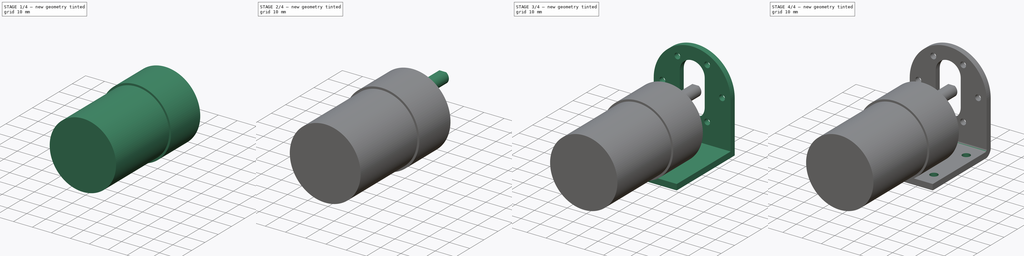
[diagram: build sequence overview — one tinted view per stage of 4, left to right]
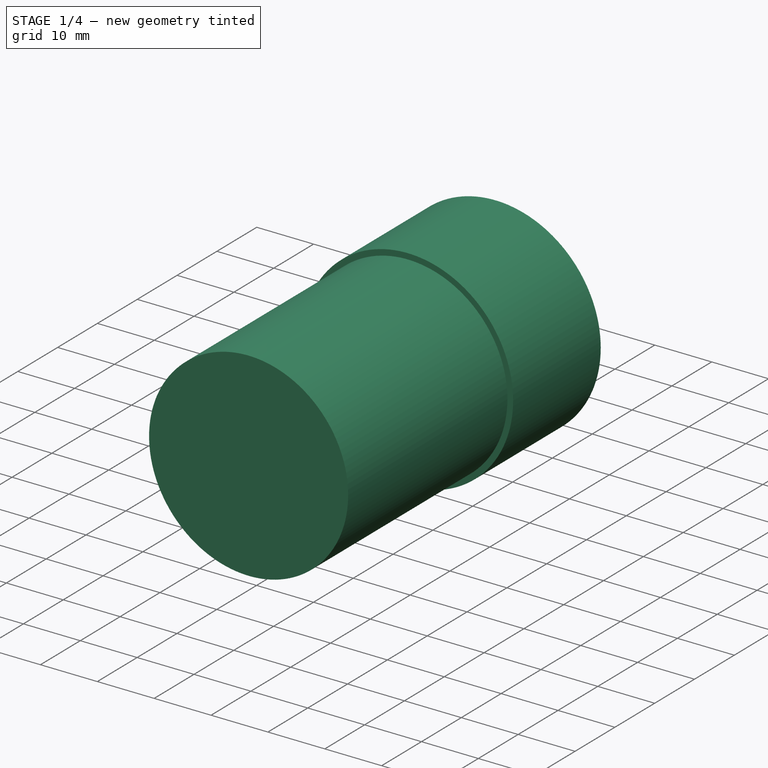
[diagram: stage 1 of 4 — iso view after this stage's code; geometry added in this stage tinted green]
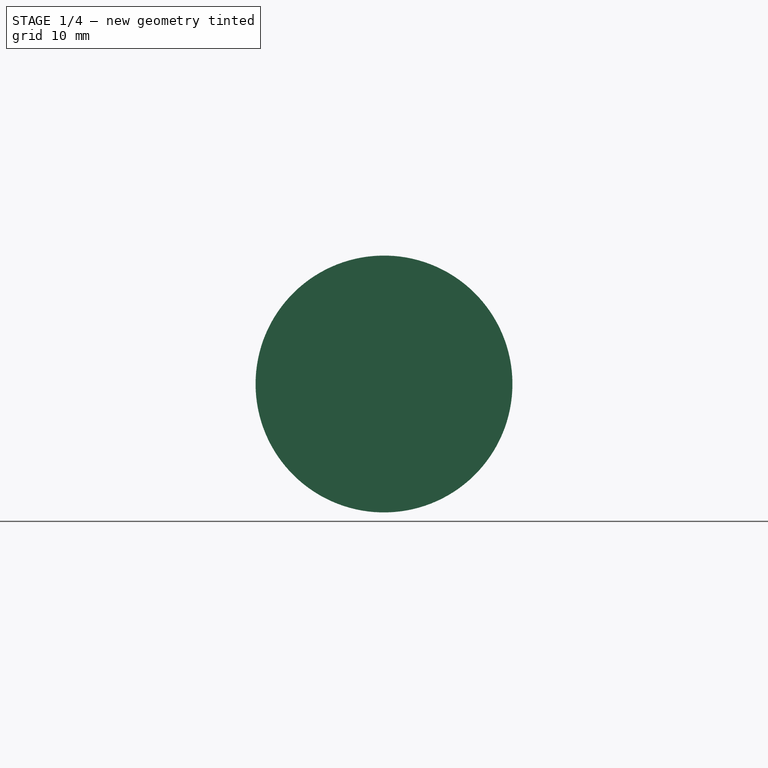
[diagram: stage 1 of 4 — front view after this stage's code; geometry added in this stage tinted green]
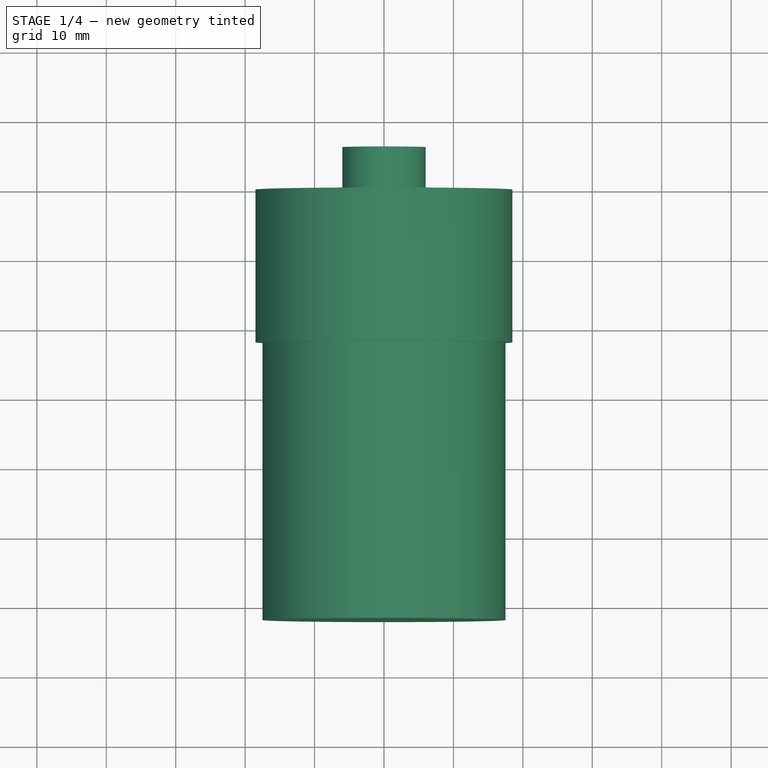
[diagram: stage 1 of 4 — top view after this stage's code; geometry added in this stage tinted green]
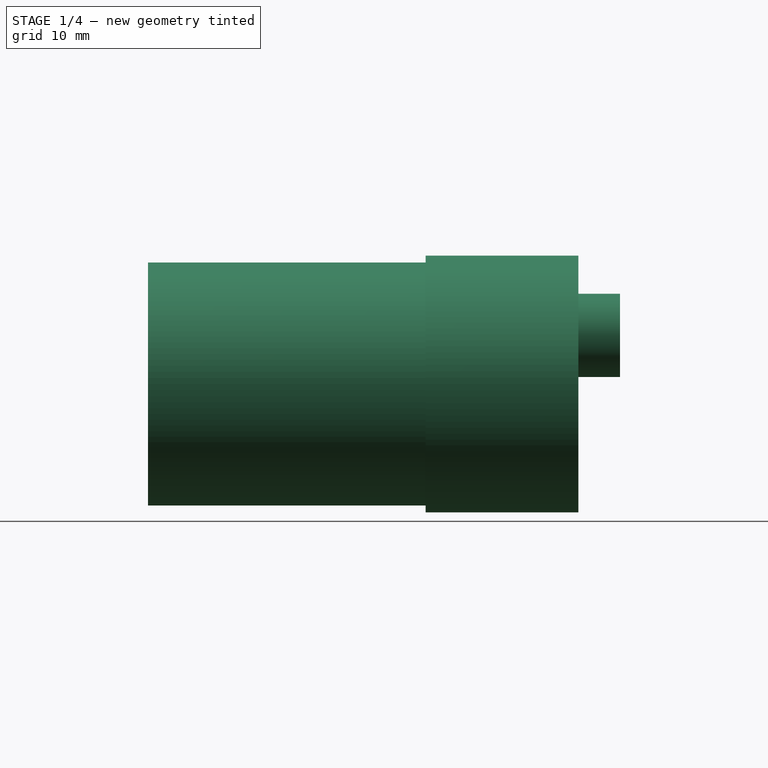
[diagram: stage 1 of 4 — right view after this stage's code; geometry added in this stage tinted green]
FCSTD DOCUMENT  (FreeCAD 0.20R29603 (Git))
Label: 모터, 브라켓
License: All rights reserved
LicenseURL: http://en.wikipedia.org/wiki/All_rights_reserved
objects: Sketcher::SketchObject×10, PartDesign::Pad×6, PartDesign::Pocket×4, PartDesign::Fillet×2, PartDesign::Body×2
note: 36 computed .brp shape members not serialized (recipe doc carries the construction recipe); baked Part::Feature solids carry a one-line shape summary decoded from their .brp

FEATURE [PartDesign::Body] Body
  Group = -> [Sketch,Pad,Sketch001,Pad001,Sketch002,Pocket,Fillet,Sketch003,Pocket001]
  Origin = -> Origin
  Placement = pos=(0,-18.5,-8.5) rot=(0,0,1;0rad)
  Tip = -> Pocket001
FEATURE [Sketcher::SketchObject] Sketch004
  FullyConstrained = true
  MapMode = 5
  Placement = pos=(0,0,0) rot=(1,0,0;1.5708rad)
  Support = -> [XZ_Plane001]
  sketch-geometry (1):
    g0: Circle CenterX=0 CenterY=18.5 CenterZ=0 NormalX=0 NormalY=0 NormalZ=1 AngleXU=0 Radius=18.5
  constraints (3):
    c: PointOnObject(g0,g-2)
    c: Diameter(g0) = 37
    c: PointOnObject(g-1,g0)
FEATURE [PartDesign::Pad] Pad002
  Direction = (0,-1,2e-16)
  Length = 22
  Length2 = 10
  Placement = pos=(0,0,0) rot=(1,0,0;1.5708rad)
  Profile = -> Sketch004
  ReferenceAxis = -> Sketch004 [N_Axis]
  Type = 0
FEATURE [Sketcher::SketchObject] Sketch005
  ExternalGeometry = -> [Pad002]
  FullyConstrained = true
  MapMode = 5
  Placement = pos=(0,-22,4.9e-15) rot=(1,0,0;1.5708rad)
  Support = -> [Pad002]
  sketch-geometry (1):
    g0: Circle CenterX=0 CenterY=18.5 CenterZ=0 NormalX=0 NormalY=0 NormalZ=1 AngleXU=0 Radius=17.5
  constraints (2):
    c: Coincident(g0,g-3)
    c: Diameter(g0) = 35
FEATURE [PartDesign::Pad] Pad003
  BaseFeature = -> Pad002
  Direction = (0,-1,2e-16)
  Length = 40
  Length2 = 10
  Placement = pos=(0,0,0) rot=(1,0,0;1.5708rad)
  Profile = -> Sketch005
  ReferenceAxis = -> Sketch005 [N_Axis]
  Type = 0
FEATURE [Sketcher::SketchObject] Sketch006
  ExternalGeometry = -> [Pad003]
  FullyConstrained = true
  MapMode = 5
  Placement = pos=(0,0,0) rot=(-1,0,0;1.5708rad)
  Support = -> [Pad003]
  sketch-geometry (1):
    g0: Circle CenterX=0 CenterY=-25.5 CenterZ=0 NormalX=0 NormalY=0 NormalZ=1 AngleXU=0 Radius=6
  constraints (3):
    c: PointOnObject(g0,g-2)
    c: Diameter(g0) = 12
    c: DistanceY(g0,g-3) = 7
FEATURE [PartDesign::Pad] Pad004
  BaseFeature = -> Pad003
  Direction = (0,1,-2e-16)
  Length = 6
  Length2 = 10
  Placement = pos=(0,0,0) rot=(1,0,0;1.5708rad)
  Profile = -> Sketch006
  ReferenceAxis = -> Sketch006 [N_Axis]
  Type = 0
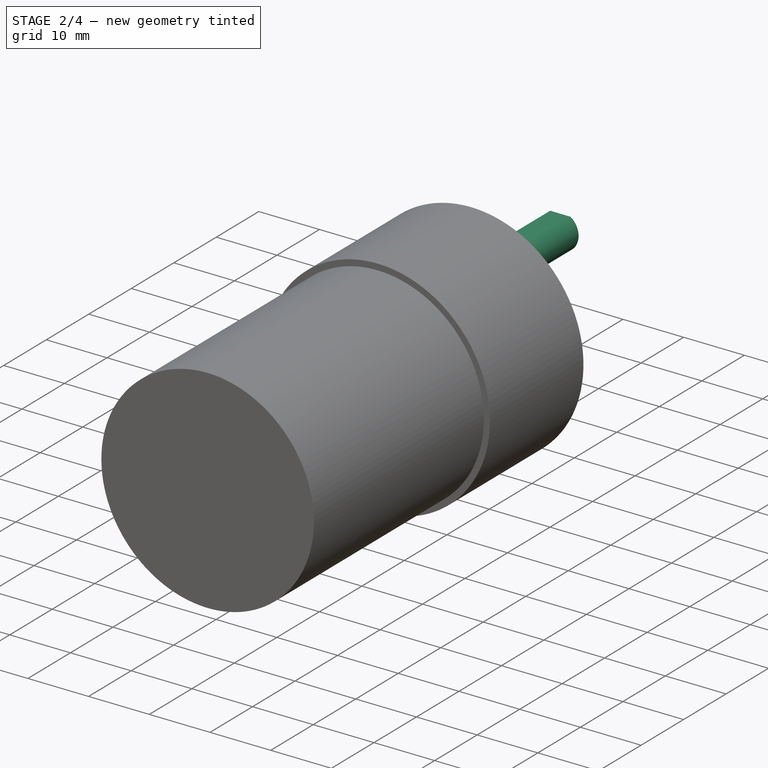
[diagram: stage 2 of 4 — iso view after this stage's code; geometry added in this stage tinted green]
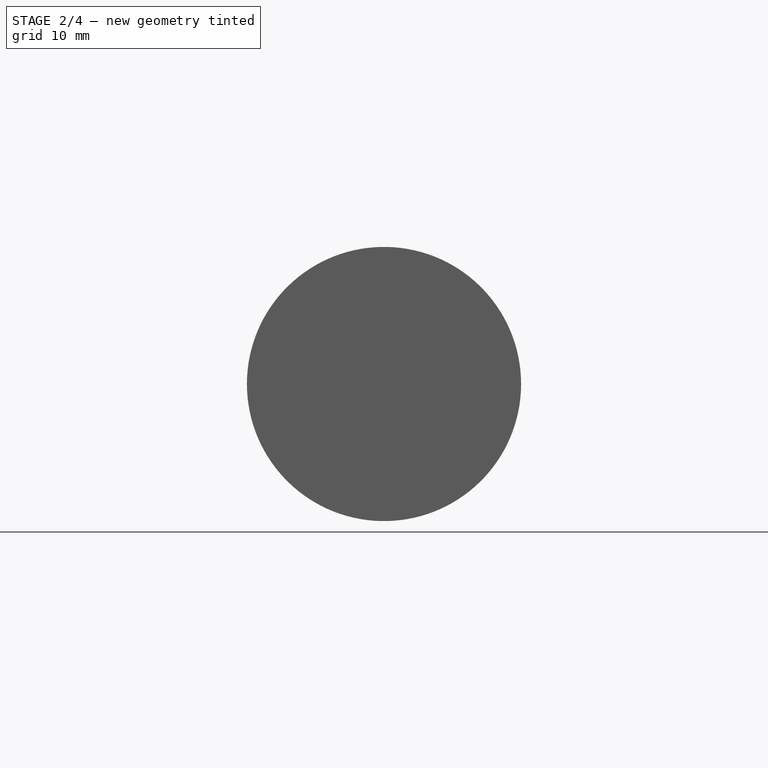
[diagram: stage 2 of 4 — front view after this stage's code; geometry added in this stage tinted green]
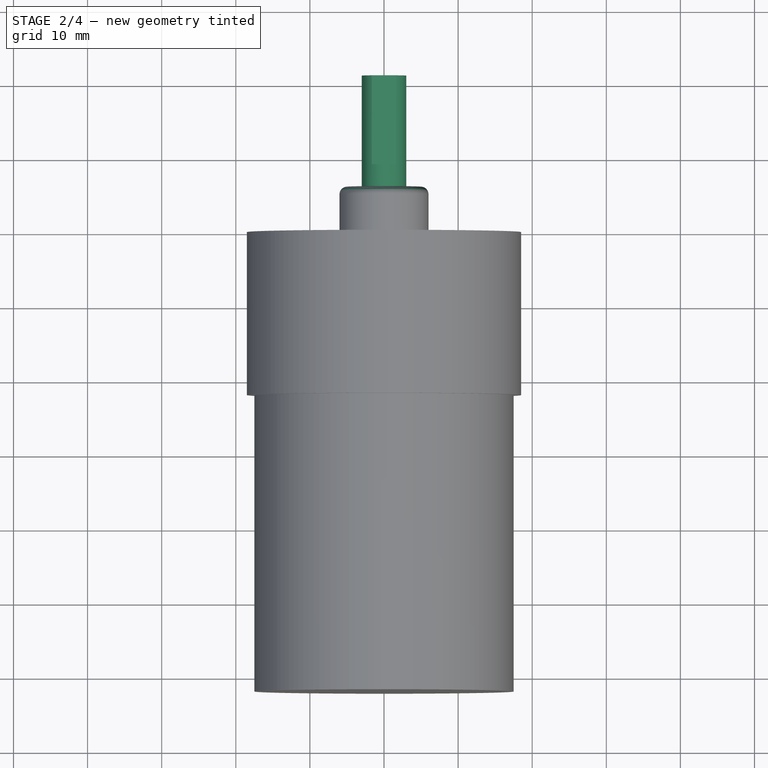
[diagram: stage 2 of 4 — top view after this stage's code; geometry added in this stage tinted green]
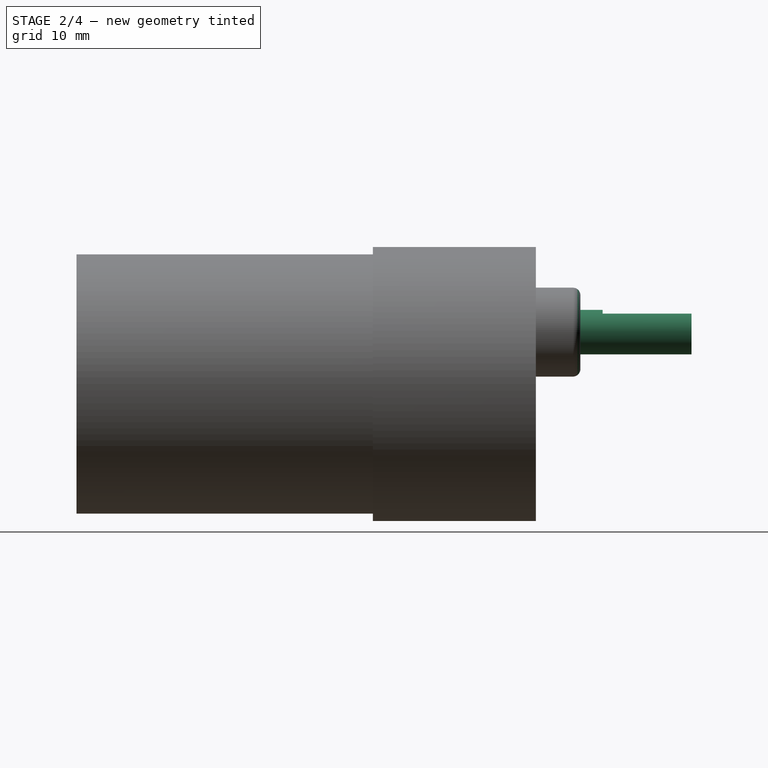
[diagram: stage 2 of 4 — right view after this stage's code; geometry added in this stage tinted green]
FEATURE [PartDesign::Fillet] Fillet001
  Base = -> Pad004 [Edge7]
  BaseFeature = -> Pad004
  Placement = pos=(0,0,0) rot=(1,0,0;1.5708rad)
  Radius = 1
  SupportTransform = false
  UseAllEdges = false
FEATURE [Sketcher::SketchObject] Sketch007
  ExternalGeometry = -> [Fillet001]
  FullyConstrained = true
  MapMode = 5
  Placement = pos=(0,6,-1.3e-15) rot=(-1,0,0;1.5708rad)
  Support = -> [Fillet001]
  sketch-geometry (1):
    g0: Circle CenterX=0 CenterY=-25.5 CenterZ=0 NormalX=0 NormalY=0 NormalZ=1 AngleXU=0 Radius=3
  constraints (2):
    c: Coincident(g0,g-3)
    c: Diameter(g0) = 6
FEATURE [PartDesign::Pad] Pad005
  BaseFeature = -> Fillet001
  Direction = (0,1,-2e-16)
  Length = 15
  Length2 = 10
  Placement = pos=(0,0,0) rot=(1,0,0;1.5708rad)
  Profile = -> Sketch007
  ReferenceAxis = -> Sketch007 [N_Axis]
  Type = 0
FEATURE [Sketcher::SketchObject] Sketch008
  ExternalGeometry = -> [Pad005]
  FullyConstrained = true
  MapMode = 5
  Placement = pos=(2.1e-15,21,-3.6e-15) rot=(-1,0,0;1.5708rad)
  Support = -> [Pad005]
  sketch-geometry (2):
    g0: LineSegment StartX=-1.65831 StartY=-28 StartZ=0 EndX=1.65831 EndY=-28 EndZ=0
    g1: ArcOfCircle CenterX=-1.2e-15 CenterY=-25.5 CenterZ=0 NormalX=0 NormalY=0 NormalZ=1 AngleXU=0 Radius=3 StartAngle=4.1267 EndAngle=5.29807
  constraints (8):
    c: PointOnObject(g0,g-3)
    c: PointOnObject(g0,g-3)
    c: Horizontal(g0)
    c: Diameter(g-3) = 6
    c: DistanceY(g0,g-3) = 2.5
    c: Coincident(g1,g0)
    c: Coincident(g1,g0)
    c: Tangent(g1,g-3)
FEATURE [PartDesign::Pocket] Pocket002
  BaseFeature = -> Pad005
  Direction = (-1e-16,-1,2e-16)
  Length = 12
  Length2 = 5
  Placement = pos=(0,0,0) rot=(1,0,0;1.5708rad)
  Profile = -> Sketch008
  ReferenceAxis = -> Sketch008 [N_Axis]
  Type = 0
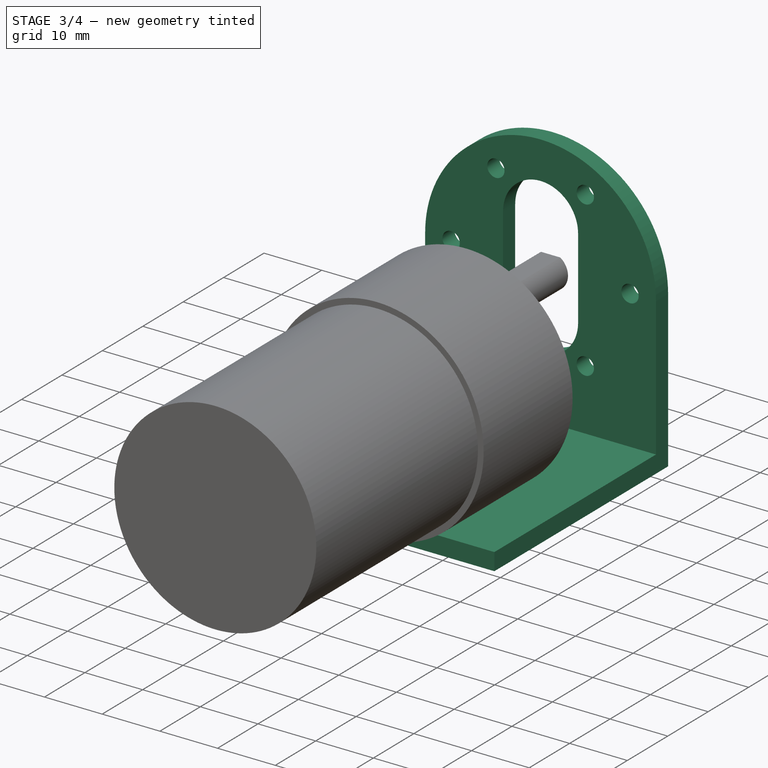
[diagram: stage 3 of 4 — iso view after this stage's code; geometry added in this stage tinted green]
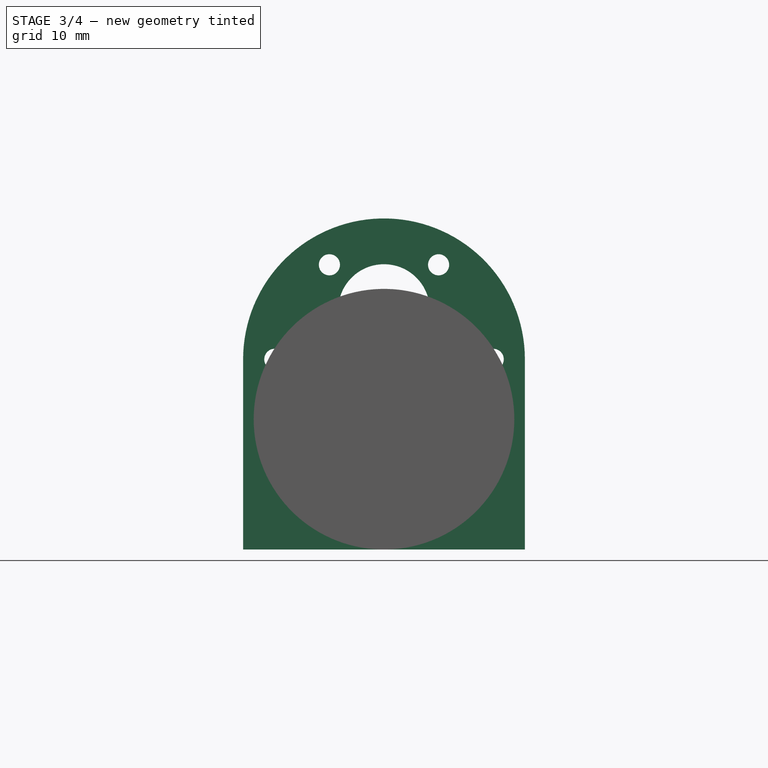
[diagram: stage 3 of 4 — front view after this stage's code; geometry added in this stage tinted green]
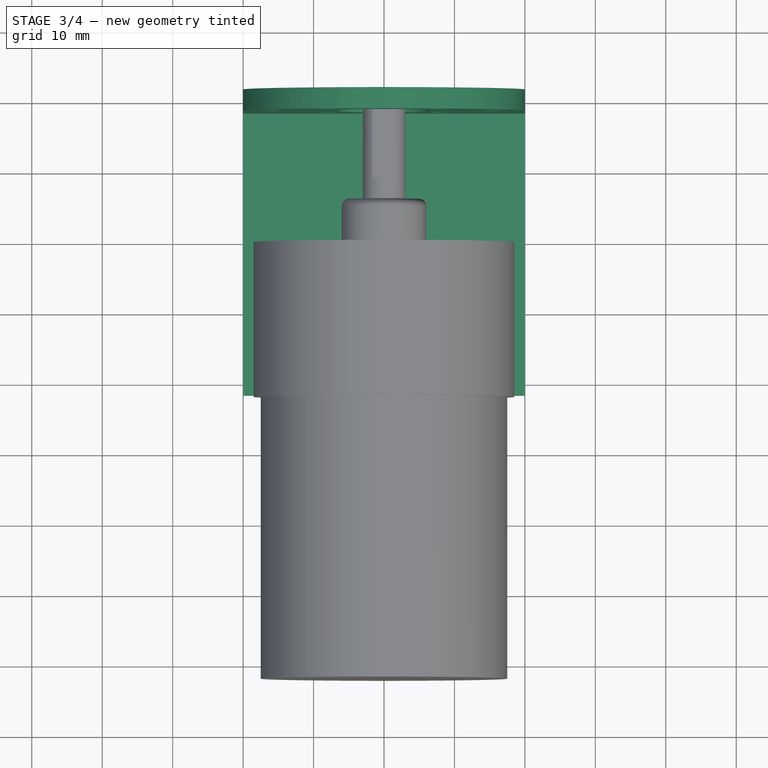
[diagram: stage 3 of 4 — top view after this stage's code; geometry added in this stage tinted green]
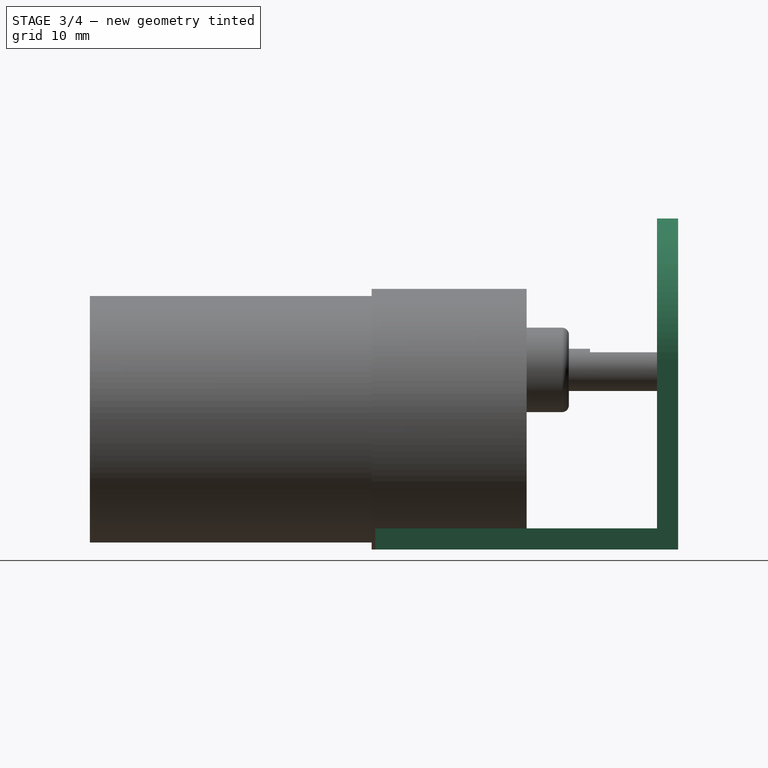
[diagram: stage 3 of 4 — right view after this stage's code; geometry added in this stage tinted green]
FEATURE [Sketcher::SketchObject] Sketch
  FullyConstrained = true
  MapMode = 5
  Support = -> [XY_Plane]
  sketch-geometry (4):
    g0: LineSegment StartX=-20 StartY=21.5 StartZ=0 EndX=20 EndY=21.5 EndZ=0
    g1: LineSegment StartX=20 StartY=21.5 StartZ=0 EndX=20 EndY=-21.5 EndZ=0
    g2: LineSegment StartX=20 StartY=-21.5 StartZ=0 EndX=-20 EndY=-21.5 EndZ=0
    g3: LineSegment StartX=-20 StartY=-21.5 StartZ=0 EndX=-20 EndY=21.5 EndZ=0
  constraints (12):
    c: Coincident(g0,g1)
    c: Coincident(g1,g2)
    c: Coincident(g2,g3)
    c: Coincident(g3,g0)
    c: Horizontal(g0)
    c: Horizontal(g2)
    c: Vertical(g1)
    c: Vertical(g3)
    c: DistanceX(g0,g0) = 40
    c: DistanceY(g1,g1) = 43
    c: DistanceY(g-1,g0) = 21.5
    c: DistanceX(g-1,g0) = 20
FEATURE [PartDesign::Pad] Pad
  Direction = (0,0,1)
  Length = 3
  Length2 = 10
  Profile = -> Sketch
  ReferenceAxis = -> Sketch [N_Axis]
  Type = 0
FEATURE [Sketcher::SketchObject] Sketch001
  ExternalGeometry = -> [Pad]
  FullyConstrained = true
  MapMode = 5
  Placement = pos=(0,21.5,0) rot=(0,0.707107,0.707107;3.14159rad)
  Support = -> [Pad]
  sketch-geometry (14):
    g0: LineSegment StartX=-20 StartY=3 StartZ=0 EndX=20 EndY=3 EndZ=0
    g1: LineSegment StartX=20 StartY=3 StartZ=0 EndX=20 EndY=27 EndZ=0
    g2: LineSegment StartX=-20 StartY=27 StartZ=0 EndX=-20 EndY=3 EndZ=0
    g3: ArcOfCircle CenterX=1.2e-15 CenterY=27 CenterZ=0 NormalX=0 NormalY=0 NormalZ=1 AngleXU=0 Radius=20 StartAngle=0 EndAngle=3.14159
    g4: Circle CenterX=-7.75 CenterY=40.42 CenterZ=0 NormalX=0 NormalY=0 NormalZ=1 AngleXU=0 Radius=1.5
    g5: Circle CenterX=7.75 CenterY=40.42 CenterZ=0 NormalX=0 NormalY=0 NormalZ=1 AngleXU=0 Radius=1.5
    g6: Circle CenterX=15.5 CenterY=27 CenterZ=0 NormalX=0 NormalY=0 NormalZ=1 AngleXU=0 Radius=1.5
    g7: Circle CenterX=-15.5 CenterY=27 CenterZ=0 NormalX=0 NormalY=0 NormalZ=1 AngleXU=0 Radius=1.5
    g8: Circle CenterX=-7.75 CenterY=13.58 CenterZ=0 NormalX=0 NormalY=0 NormalZ=1 AngleXU=0 Radius=1.5
    g9: Circle CenterX=7.75 CenterY=13.58 CenterZ=0 NormalX=0 NormalY=0 NormalZ=1 AngleXU=0 Radius=1.5
    g10: ArcOfCircle CenterX=0 CenterY=34 CenterZ=0 NormalX=0 NormalY=0 NormalZ=1 AngleXU=0 Radius=6.5 StartAngle=0 EndAngle=3.14159
    g11: ArcOfCircle CenterX=0 CenterY=20 CenterZ=0 NormalX=0 NormalY=0 NormalZ=1 AngleXU=0 Radius=6.5 StartAngle=3.14159 EndAngle=6.28319
    g12: LineSegment StartX=-6.5 StartY=34 StartZ=0 EndX=-6.5 EndY=20 EndZ=0
    g13: LineSegment StartX=6.5 StartY=20 StartZ=0 EndX=6.5 EndY=34 EndZ=0
  constraints (38):
    c: Coincident(g0,g1)
    c: Coincident(g2,g0)
    c: Horizontal(g0)
    c: Vertical(g1)
    c: Vertical(g2)
    c: Coincident(g0,g-4)
    c: PointOnObject(g0,g-3)
    c: Tangent(g3,g1) = -1.5708
    c: Tangent(g3,g2) = -1.5708
    c: DistanceY(g-1,g1) = 27
    c: Horizontal(g5,g4)
    c: Horizontal(g7,g6)
    c: Horizontal(g9,g8)
    c: Diameter(g5) = 3
    c: DistanceX(g4,g5) = 15.5
    c: Horizontal(g6,g1)
    c: Vertical(g5,g9)
    c: Tangent(g10,g12) = -1.5708
    c: Tangent(g12,g11) = -1.5708
    c: Tangent(g11,g13) = -1.5708
    c: Tangent(g13,g10) = -1.5708
    c: Equal(g10,g11)
    c: PointOnObject(g10,g-2)
    c: PointOnObject(g11,g-2)
    c: DistanceX(g10,g10) = 13
    c: DistanceY(g-1,g11) = 20
    c: DistanceY(g-1,g10) = 34
    c: DistanceX(g9,g0) = 12.25
    c: DistanceY(g-1,g9) = 13.58
    c: DistanceX(g0,g8) = 12.25
    c: DistanceY(g-1,g5) = 40.42
    c: DistanceX(g6,g1) = 4.5
    c: DistanceX(g2,g7) = 4.5
    c: Diameter(g4) = 3
    c: Diameter(g7) = 3
    c: Diameter(g8) = 3
    c: Diameter(g9) = 3
    c: Diameter(g6) = 3
FEATURE [PartDesign::Pad] Pad001
  BaseFeature = -> Pad
  Direction = (0,1,-2e-16)
  Length = 3
  Length2 = 10
  Profile = -> Sketch001
  ReferenceAxis = -> Sketch001 [N_Axis]
  Reversed = true
  Type = 0
FEATURE [Sketcher::SketchObject] Sketch009
  ExternalGeometry = -> [Pocket002]
  FullyConstrained = true
  MapMode = 5
  Placement = pos=(0,0,0) rot=(-1,0,0;1.5708rad)
  Support = -> [Pocket002]
  sketch-geometry (6):
    g0: Circle CenterX=-7.75 CenterY=-5.08 CenterZ=0 NormalX=0 NormalY=0 NormalZ=1 AngleXU=0 Radius=1.5
    g1: Circle CenterX=7.75 CenterY=-5.08 CenterZ=0 NormalX=0 NormalY=0 NormalZ=1 AngleXU=0 Radius=1.5
    g2: Circle CenterX=-15.5 CenterY=-18.5 CenterZ=0 NormalX=0 NormalY=0 NormalZ=1 AngleXU=0 Radius=1.5
    g3: Circle CenterX=15.5 CenterY=-18.5 CenterZ=0 NormalX=0 NormalY=0 NormalZ=1 AngleXU=0 Radius=1.5
    g4: Circle CenterX=7.75 CenterY=-31.92 CenterZ=0 NormalX=0 NormalY=0 NormalZ=1 AngleXU=0 Radius=1.5
    g5: Circle CenterX=-7.75 CenterY=-31.92 CenterZ=0 NormalX=0 NormalY=0 NormalZ=1 AngleXU=0 Radius=1.5
  constraints (18):
    c: Horizontal(g0,g1)
    c: Horizontal(g2,g3)
    c: Horizontal(g4,g5)
    c: Vertical(g0,g5)
    c: Diameter(g0) = 3
    c: Diameter(g1) = 3
    c: Diameter(g3) = 3
    c: Diameter(g4) = 3
    c: Diameter(g5) = 3
    c: Diameter(g2) = 3
    c: DistanceX(g0,g1) = 15.5
    c: DistanceY(g1,g-1) = 5.08
    c: DistanceX(g-1,g1) = 7.75
    c: DistanceX(g-3,g3) = 15.5
    c: Horizontal(g3,g-3)
    c: DistanceX(g2,g-3) = 15.5
    c: DistanceY(g4,g1) = 26.84
    c: DistanceX(g-3,g4) = 7.75
FEATURE [PartDesign::Pocket] Pocket003
  BaseFeature = -> Pocket002
  Direction = (0,-1,2e-16)
  Length = 15
  Length2 = 5
  Placement = pos=(0,0,0) rot=(1,0,0;1.5708rad)
  Profile = -> Sketch009
  ReferenceAxis = -> Sketch009 [N_Axis]
  Type = 0
FEATURE [PartDesign::Body] Body001
  Group = -> [Sketch004,Pad002,Sketch005,Pad003,Sketch006,Pad004,Fillet001,Sketch007,Pad005,Sketch008,Pocket002,Sketch009,Pocket003]
  Origin = -> Origin001
  Tip = -> Pocket003
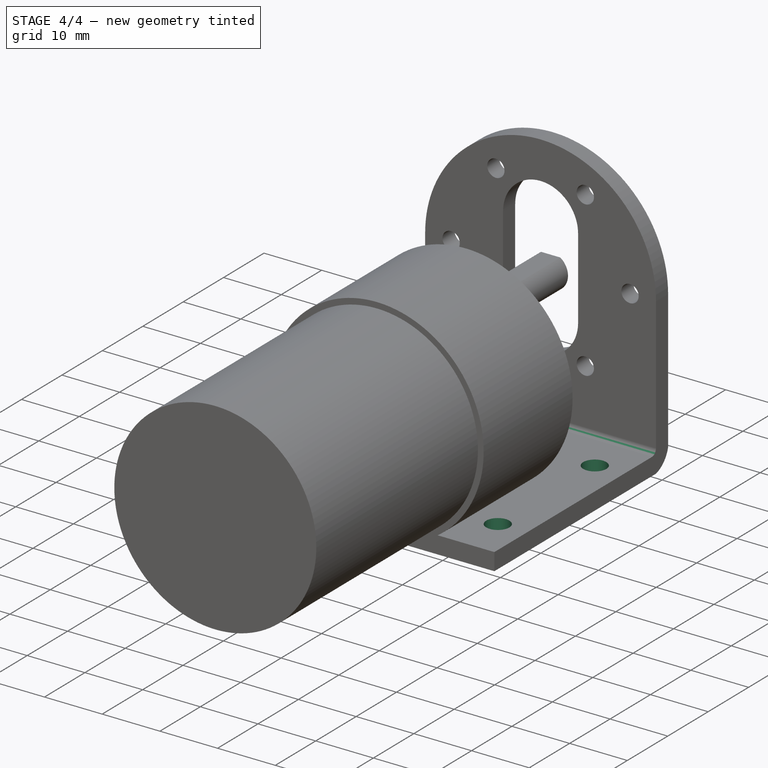
[diagram: stage 4 of 4 — iso view after this stage's code; geometry added in this stage tinted green]
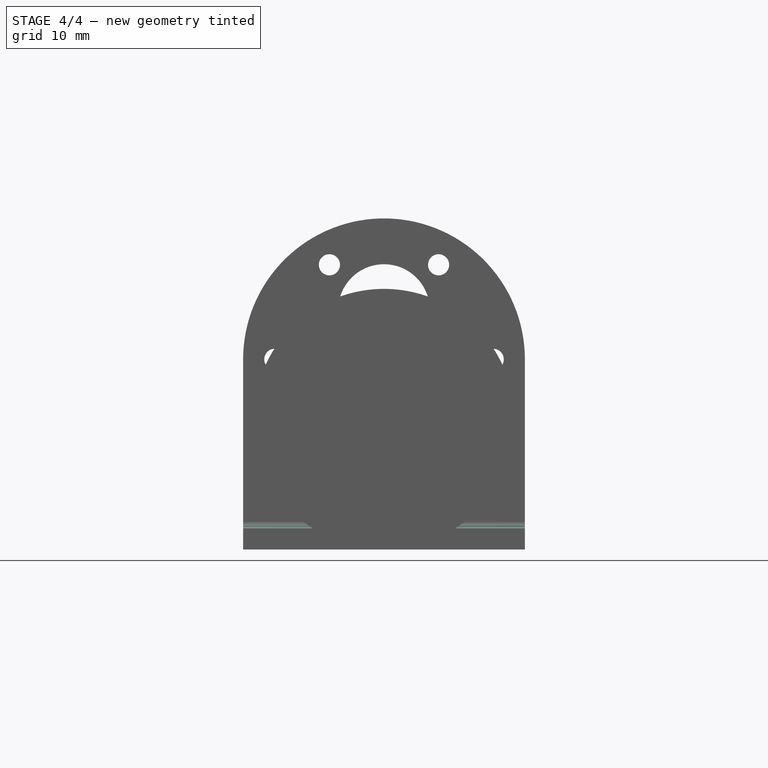
[diagram: stage 4 of 4 — front view after this stage's code; geometry added in this stage tinted green]
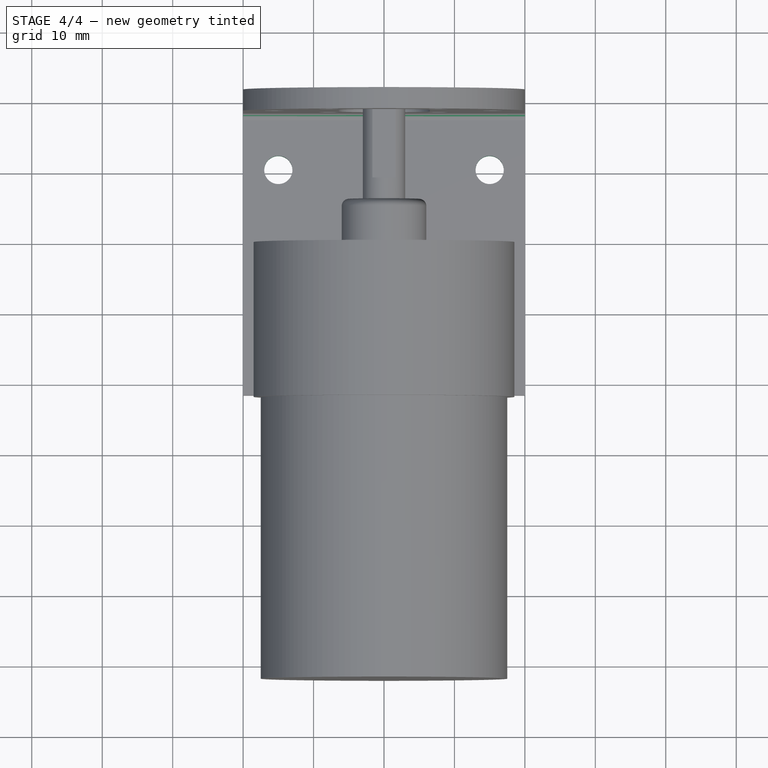
[diagram: stage 4 of 4 — top view after this stage's code; geometry added in this stage tinted green]
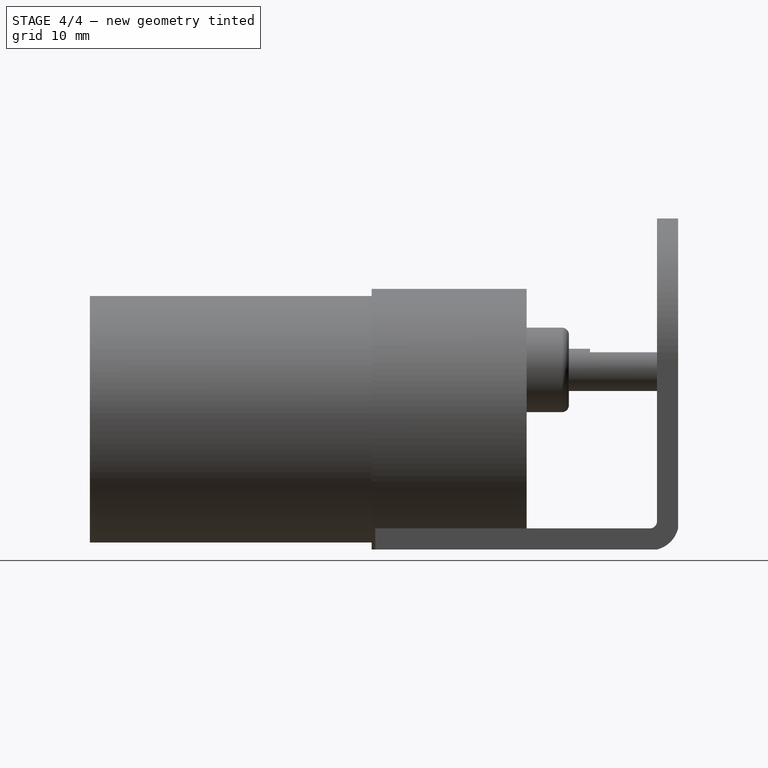
[diagram: stage 4 of 4 — right view after this stage's code; geometry added in this stage tinted green]
FEATURE [Sketcher::SketchObject] Sketch002
  ExternalGeometry = -> [Pad001]
  FullyConstrained = true
  MapMode = 5
  Placement = pos=(0,0,3) rot=(0,0,1;0rad)
  Support = -> [Pad001]
  sketch-geometry (4):
    g0: Circle CenterX=15 CenterY=10.5 CenterZ=0 NormalX=0 NormalY=0 NormalZ=1 AngleXU=0 Radius=2
    g1: Circle CenterX=15 CenterY=-13.5 CenterZ=0 NormalX=0 NormalY=0 NormalZ=1 AngleXU=0 Radius=2
    g2: Circle CenterX=-15 CenterY=10.5 CenterZ=0 NormalX=0 NormalY=0 NormalZ=1 AngleXU=0 Radius=2
    g3: Circle CenterX=-15 CenterY=-13.5 CenterZ=0 NormalX=0 NormalY=0 NormalZ=1 AngleXU=0 Radius=2
  constraints (12):
    c: DistanceY(g3,g2) = 24
    c: DistanceX(g3,g1) = 30
    c: Horizontal(g0,g2)
    c: Horizontal(g1,g3)
    c: Vertical(g1,g0)
    c: Vertical(g2,g3)
    c: Diameter(g1) = 4
    c: Diameter(g0) = 4
    c: Diameter(g2) = 4
    c: Diameter(g3) = 4
    c: DistanceX(g-5,g3) = 5
    c: DistanceY(g-5,g3) = 8
FEATURE [PartDesign::Pocket] Pocket
  BaseFeature = -> Pad001
  Direction = (0,0,-1)
  Length = 5
  Length2 = 5
  Profile = -> Sketch002
  ReferenceAxis = -> Sketch002 [N_Axis]
  Type = 1
FEATURE [PartDesign::Fillet] Fillet
  Base = -> Pocket [Edge32]
  BaseFeature = -> Pocket
  Radius = 1
  SupportTransform = false
  UseAllEdges = false
FEATURE [Sketcher::SketchObject] Sketch003
  ExternalGeometry = -> [Fillet]
  FullyConstrained = true
  MapMode = 5
  Placement = pos=(-20,0,0) rot=(0.57735,-0.57735,-0.57735;2.0944rad)
  Support = -> [Fillet]
  sketch-geometry (3):
    g0: ArcOfCircle CenterX=-17.5 CenterY=4 CenterZ=0 NormalX=0 NormalY=0 NormalZ=1 AngleXU=0 Radius=4.12311 StartAngle=3.38657 EndAngle=4.46741
    g1: LineSegment StartX=-21.5 StartY=3 StartZ=0 EndX=-21.5 EndY=0 EndZ=0
    g2: LineSegment StartX=-21.5 StartY=0 StartZ=0 EndX=-18.5 EndY=0 EndZ=0
  constraints (7):
    c: Coincident(g0,g-4)
    c: PointOnObject(g0,g-1)
    c: Coincident(g0,g-5)
    c: Coincident(g0,g1)
    c: Coincident(g1,g-4)
    c: Coincident(g1,g2)
    c: Coincident(g2,g0)
FEATURE [PartDesign::Pocket] Pocket001
  BaseFeature = -> Fillet
  Direction = (1,0,0)
  Length = 5
  Length2 = 5
  Profile = -> Sketch003
  ReferenceAxis = -> Sketch003 [N_Axis]
  Type = 1
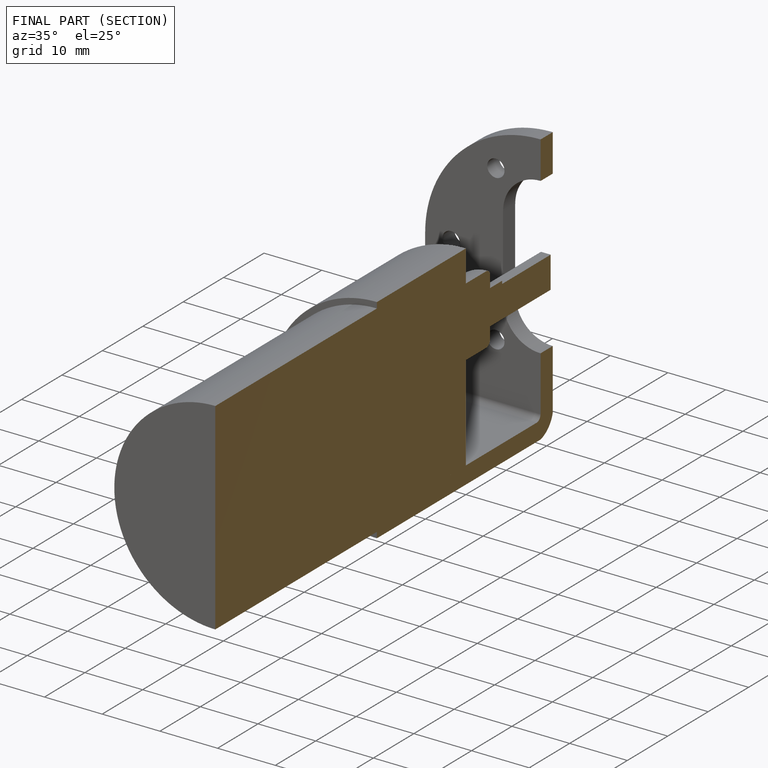
[diagram: finished part — half-section view (interior)]
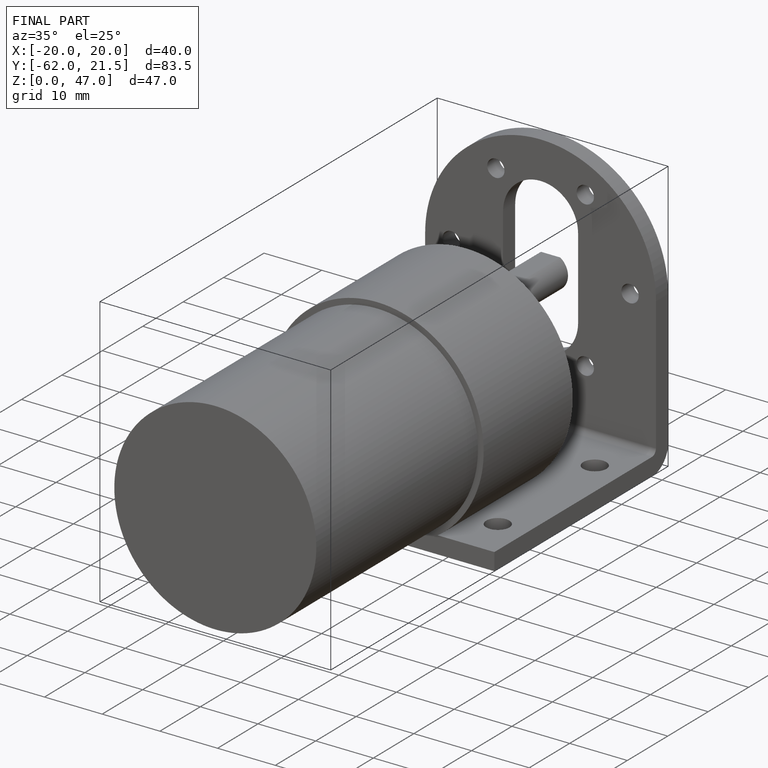
[diagram: finished part — iso view with bounding-box wireframe]
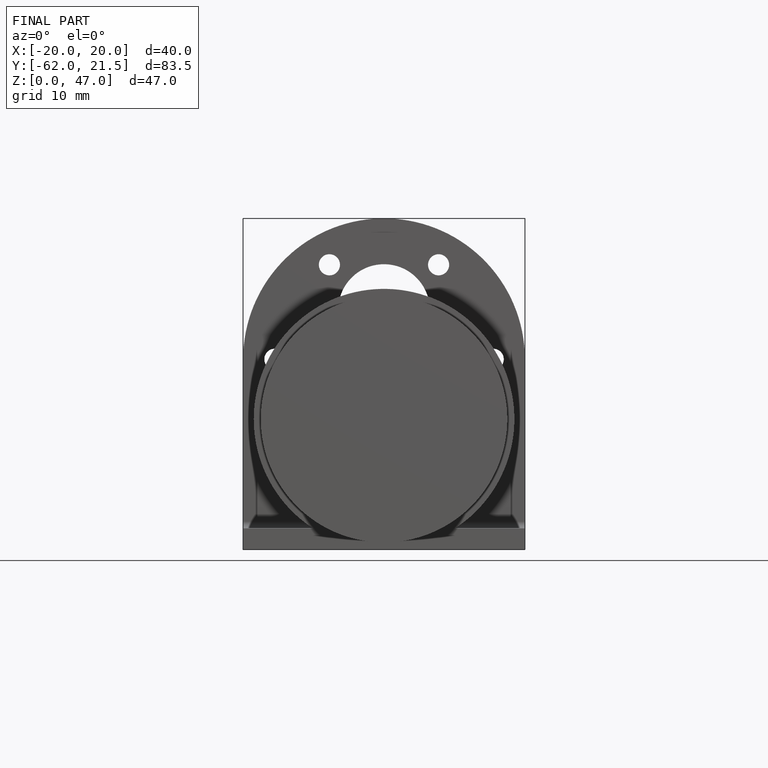
[diagram: finished part — front view with bounding-box wireframe]
